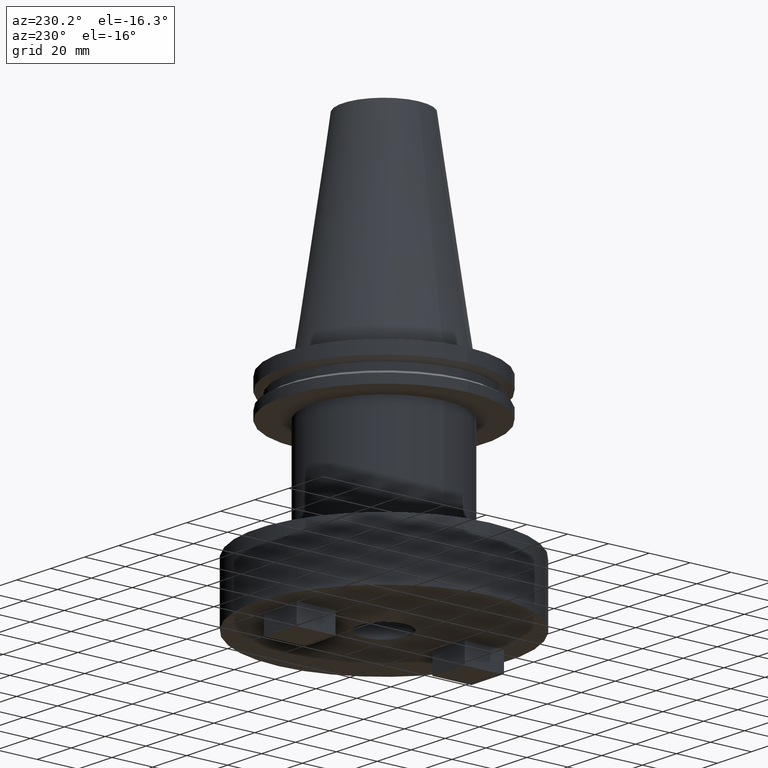
[diagram: clean part render]
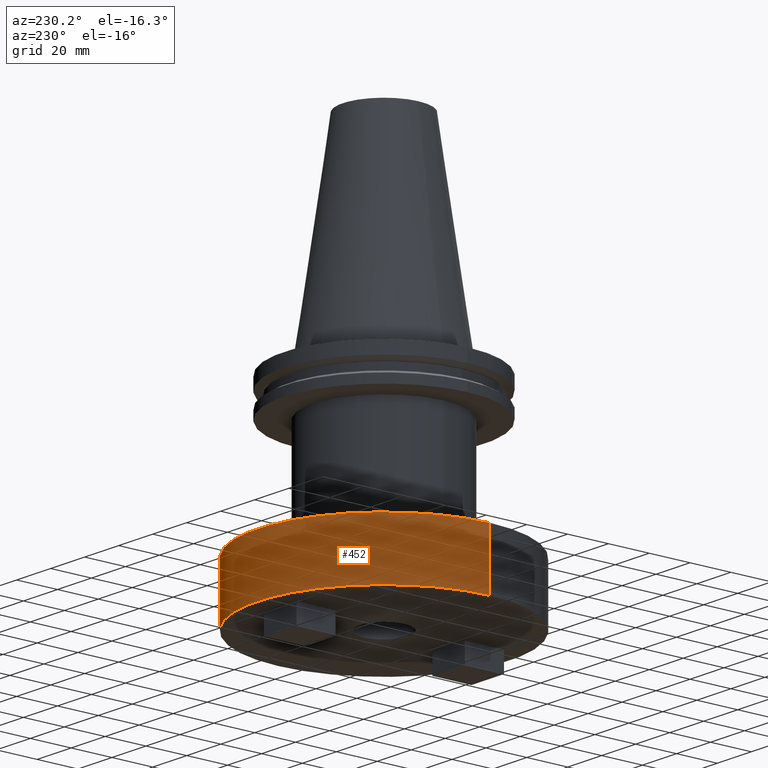
[diagram: same view with one face highlighted and labeled with its STEP entity id]
A machine part, auxiliary view. The second image highlights one B-rep face of the part: STEP entity #452.
In plain terms, the highlighted cylindrical surface (partial cylindrical patch) has radius 61.9 mm, axis along (-0, -0, 1).
Its self-contained STEP definition (entity closure, byte-faithful):
#34 = AXIS2_PLACEMENT_3D ( 'NONE', #431, #163, #1023 ) ;
#57 = DIRECTION ( 'NONE',  ( 1.000000000000000000, 0.000000000000000000, 0.000000000000000000 ) ) ;
#70 = ORIENTED_EDGE ( 'NONE', *, *, #650, .F. ) ;
#86 = EDGE_CURVE ( 'NONE', #1004, #269, #963, .T. ) ;
#113 = DIRECTION ( 'NONE',  ( -0.000000000000000000, -0.000000000000000000, 1.000000000000000000 ) ) ;
#143 = VERTEX_POINT ( 'NONE', #389 ) ;
#163 = DIRECTION ( 'NONE',  ( -0.000000000000000000, -0.000000000000000000, 1.000000000000000000 ) ) ;
#212 = CARTESIAN_POINT ( 'NONE',  ( 61.89999999999999858, 0.000000000000000000, 0.000000000000000000 ) ) ;
#269 = VERTEX_POINT ( 'NONE', #849 ) ;
#277 = AXIS2_PLACEMENT_3D ( 'NONE', #628, #724, #57 ) ;
#291 = LINE ( 'NONE', #212, #544 ) ;
#347 = CIRCLE ( 'NONE', #34, 61.89999999999999858 ) ;
#359 = VERTEX_POINT ( 'NONE', #579 ) ;
#389 = CARTESIAN_POINT ( 'NONE',  ( -61.89999999999999858, 7.580563686722116084E-15, -73.09999999999999432 ) ) ;
#431 = CARTESIAN_POINT ( 'NONE',  ( 0.000000000000000000, 0.000000000000000000, -73.09999999999999432 ) ) ;
#452 = ADVANCED_FACE ( 'NONE', ( #607 ), #945, .T. ) ;
#465 = CARTESIAN_POINT ( 'NONE',  ( -61.89999999999999858, 7.580563686722116084E-15, 0.000000000000000000 ) ) ;
#476 = EDGE_CURVE ( 'NONE', #359, #143, #347, .T. ) ;
#511 = EDGE_LOOP ( 'NONE', ( #826, #590, #1043, #70 ) ) ;
#530 = CARTESIAN_POINT ( 'NONE',  ( 0.000000000000000000, 0.000000000000000000, 0.000000000000000000 ) ) ;
#536 = DIRECTION ( 'NONE',  ( -0.000000000000000000, -0.000000000000000000, 1.000000000000000000 ) ) ;
#544 = VECTOR ( 'NONE', #716, 1000.000000000000000 ) ;
#557 = AXIS2_PLACEMENT_3D ( 'NONE', #530, #113, #779 ) ;
#579 = CARTESIAN_POINT ( 'NONE',  ( 61.89999999999999858, 0.000000000000000000, -73.09999999999999432 ) ) ;
#590 = ORIENTED_EDGE ( 'NONE', *, *, #711, .T. ) ;
#607 = FACE_OUTER_BOUND ( 'NONE', #511, .T. ) ;
#628 = CARTESIAN_POINT ( 'NONE',  ( 0.000000000000000000, 0.000000000000000000, -101.5999999999999943 ) ) ;
#650 = EDGE_CURVE ( 'NONE', #1004, #359, #291, .T. ) ;
#677 = CARTESIAN_POINT ( 'NONE',  ( 61.89999999999999858, 0.000000000000000000, -101.5999999999999943 ) ) ;
#711 = EDGE_CURVE ( 'NONE', #269, #143, #787, .T. ) ;
#716 = DIRECTION ( 'NONE',  ( -0.000000000000000000, -0.000000000000000000, 1.000000000000000000 ) ) ;
#724 = DIRECTION ( 'NONE',  ( -0.000000000000000000, -0.000000000000000000, 1.000000000000000000 ) ) ;
#779 = DIRECTION ( 'NONE',  ( 1.000000000000000000, 0.000000000000000000, 0.000000000000000000 ) ) ;
#787 = LINE ( 'NONE', #465, #928 ) ;
#826 = ORIENTED_EDGE ( 'NONE', *, *, #86, .T. ) ;
#849 = CARTESIAN_POINT ( 'NONE',  ( -61.89999999999999858, 7.580563686722116084E-15, -101.5999999999999943 ) ) ;
#928 = VECTOR ( 'NONE', #536, 1000.000000000000000 ) ;
#945 = CYLINDRICAL_SURFACE ( 'NONE', #557, 61.89999999999999858 ) ;
#963 = CIRCLE ( 'NONE', #277, 61.89999999999999858 ) ;
#1004 = VERTEX_POINT ( 'NONE', #677 ) ;
#1023 = DIRECTION ( 'NONE',  ( 1.000000000000000000, 0.000000000000000000, 0.000000000000000000 ) ) ;
#1043 = ORIENTED_EDGE ( 'NONE', *, *, #476, .F. ) ;